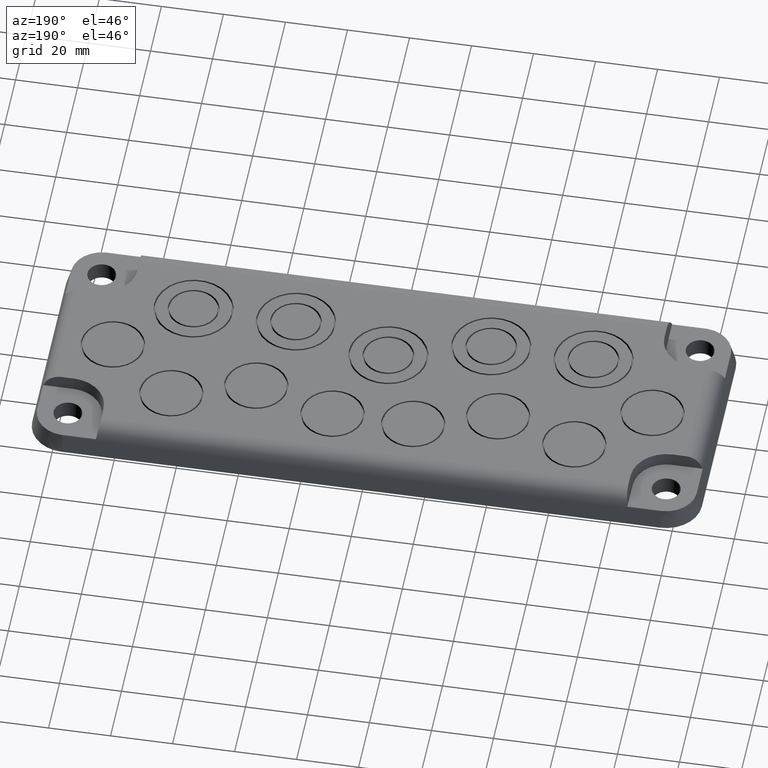
[diagram: clean part render]
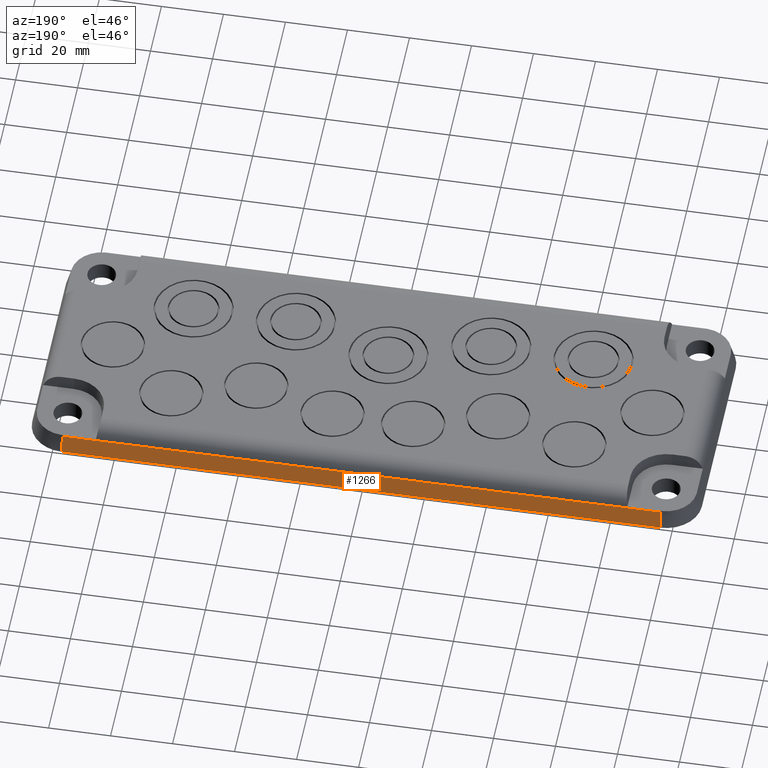
[diagram: same view with one face highlighted and labeled with its STEP entity id]
A machine part, auxiliary view. The second image highlights one B-rep face of the part: STEP entity #1266.
In plain terms, the highlighted planar face has unit normal (0, 0.9659, 0.2588).
Its self-contained STEP definition (entity closure, byte-faithful):
#26 = DIRECTION ( 'NONE',  ( 6.246670936615559500E-016, 0.2588190451025213500, -0.9659258262890680900 ) ) ;
#86 = ORIENTED_EDGE ( 'NONE', *, *, #4834, .T. ) ;
#397 = CARTESIAN_POINT ( 'NONE',  ( -96.49999999999997200, 42.50000000000000000, -1.084202172485506800E-014 ) ) ;
#482 = VERTEX_POINT ( 'NONE', #2363 ) ;
#537 = CARTESIAN_POINT ( 'NONE',  ( -96.49999999999997200, 41.01210110554941900, 5.552914270615116400 ) ) ;
#615 = ORIENTED_EDGE ( 'NONE', *, *, #4654, .T. ) ;
#676 = DIRECTION ( 'NONE',  ( 0.0000000000000000000, -0.2588190451025213500, 0.9659258262890680900 ) ) ;
#1022 = CARTESIAN_POINT ( 'NONE',  ( 96.49999999999997200, 42.50000000000000000, 0.0000000000000000000 ) ) ;
#1038 = DIRECTION ( 'NONE',  ( 0.0000000000000000000, 0.9659258262890680900, 0.2588190451025213500 ) ) ;
#1058 = CARTESIAN_POINT ( 'NONE',  ( -96.49999999999997200, 42.50000000000004300, 0.0000000000000000000 ) ) ;
#1097 = LINE ( 'NONE', #2598, #2615 ) ;
#1146 = CARTESIAN_POINT ( 'NONE',  ( 96.49999999999997200, 42.50000000000004300, 9.711114224141915900E-015 ) ) ;
#1266 = ADVANCED_FACE ( 'NONE', ( #4758 ), #4517, .T. ) ;
#2095 = LINE ( 'NONE', #2875, #2764 ) ;
#2363 = CARTESIAN_POINT ( 'NONE',  ( -96.49999999999997200, 42.50000000000004300, 0.0000000000000000000 ) ) ;
#2517 = VERTEX_POINT ( 'NONE', #4505 ) ;
#2588 = VERTEX_POINT ( 'NONE', #537 ) ;
#2598 = CARTESIAN_POINT ( 'NONE',  ( -96.49999999999997200, 42.50000000000004300, 0.0000000000000000000 ) ) ;
#2606 = DIRECTION ( 'NONE',  ( -1.000000000000000000, -0.0000000000000000000, -0.0000000000000000000 ) ) ;
#2615 = VECTOR ( 'NONE', #2606, 1000.000000000000000 ) ;
#2648 = EDGE_LOOP ( 'NONE', ( #3977, #615, #86, #2824 ) ) ;
#2764 = VECTOR ( 'NONE', #4822, 1000.000000000000000 ) ;
#2824 = ORIENTED_EDGE ( 'NONE', *, *, #2871, .T. ) ;
#2828 = LINE ( 'NONE', #1146, #3240 ) ;
#2871 = EDGE_CURVE ( 'NONE', #4102, #482, #1097, .T. ) ;
#2875 = CARTESIAN_POINT ( 'NONE',  ( -96.49999999999997200, 41.01210110554946200, 5.552914270615127100 ) ) ;
#3240 = VECTOR ( 'NONE', #4942, 1000.000000000000000 ) ;
#3569 = AXIS2_PLACEMENT_3D ( 'NONE', #1058, #1038, #676 ) ;
#3977 = ORIENTED_EDGE ( 'NONE', *, *, #4407, .F. ) ;
#4102 = VERTEX_POINT ( 'NONE', #1022 ) ;
#4321 = VECTOR ( 'NONE', #26, 1000.000000000000000 ) ;
#4407 = EDGE_CURVE ( 'NONE', #2588, #482, #4929, .T. ) ;
#4505 = CARTESIAN_POINT ( 'NONE',  ( 96.49999999999997200, 41.01210110554946200, 5.552914270615127100 ) ) ;
#4517 = PLANE ( 'NONE',  #3569 ) ;
#4654 = EDGE_CURVE ( 'NONE', #2588, #2517, #2095, .T. ) ;
#4758 = FACE_OUTER_BOUND ( 'NONE', #2648, .T. ) ;
#4822 = DIRECTION ( 'NONE',  ( 1.000000000000000000, -0.0000000000000000000, -0.0000000000000000000 ) ) ;
#4834 = EDGE_CURVE ( 'NONE', #2517, #4102, #2828, .T. ) ;
#4929 = LINE ( 'NONE', #397, #4321 ) ;
#4942 = DIRECTION ( 'NONE',  ( -0.0000000000000000000, 0.2588190451025213500, -0.9659258262890680900 ) ) ;